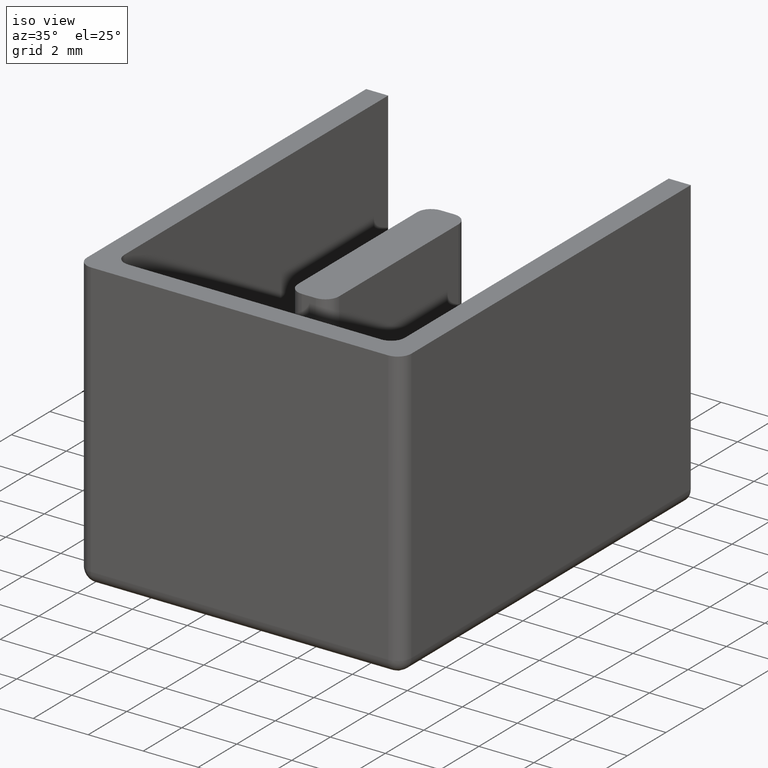
[diagram: clean part render]
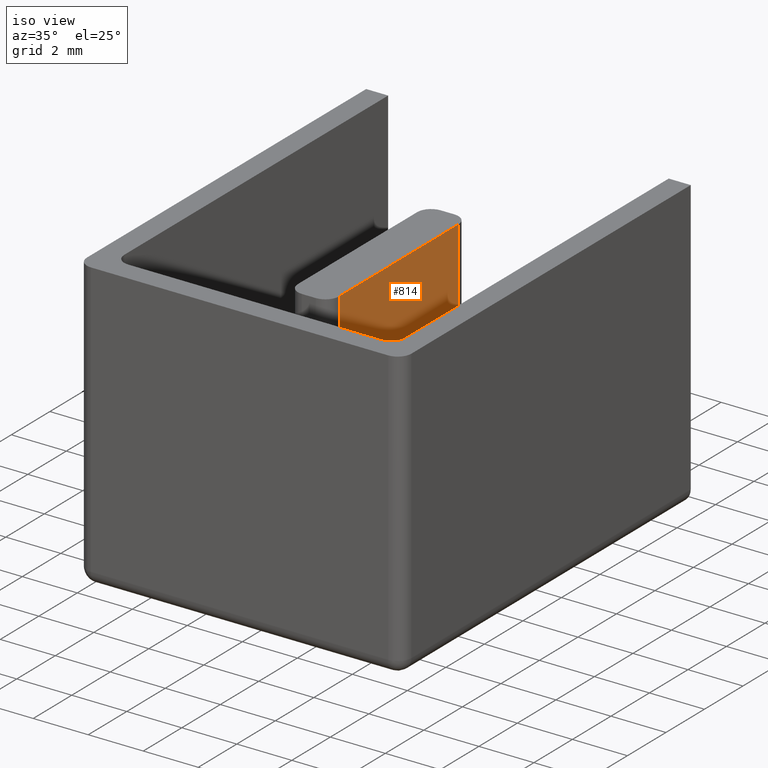
[diagram: same view with one face highlighted and labeled with its STEP entity id]
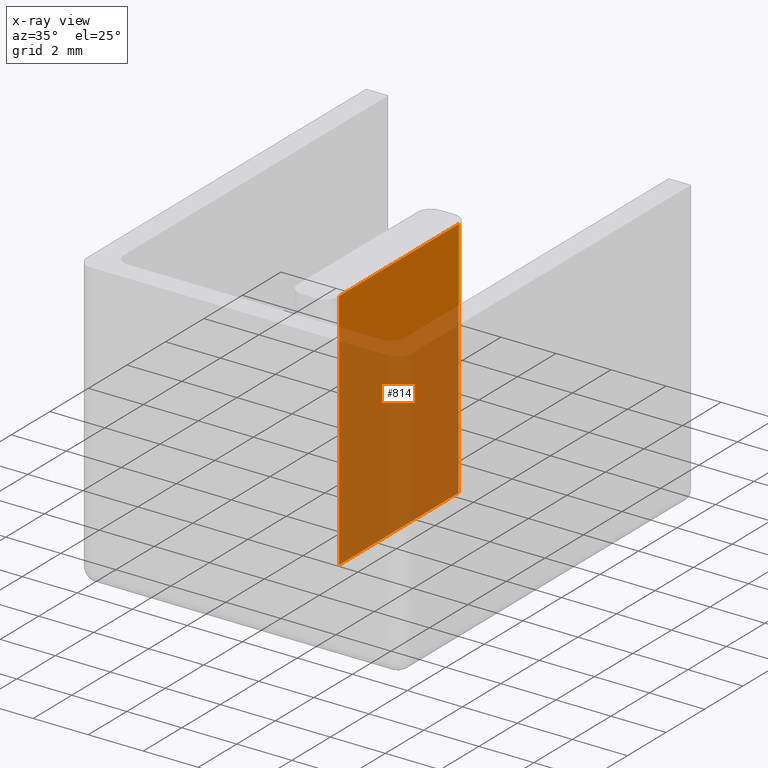
[diagram: x-ray of the same camera — body ghosted, the highlighted face saturated]
A machine part, iso view. The second image highlights one B-rep face of the part: STEP entity #814.
The next image is the same camera in x-ray: the body ghosted, the highlighted face saturated — about 74% of this face is hidden behind the body in this view.
In plain terms, the highlighted planar face has unit normal (-1, 0, 0).
Its self-contained STEP definition (entity closure, byte-faithful):
#4 = VECTOR ( 'NONE', #435, 1000.000000000000000 ) ;
#20 = AXIS2_PLACEMENT_3D ( 'NONE', #478, #486, #488 ) ;
#32 = VECTOR ( 'NONE', #596, 1000.000000000000000 ) ;
#43 = VECTOR ( 'NONE', #665, 1000.000000000000000 ) ;
#70 = VECTOR ( 'NONE', #605, 1000.000000000000000 ) ;
#205 = ORIENTED_EDGE ( 'NONE', *, *, #845, .F. ) ;
#223 = ORIENTED_EDGE ( 'NONE', *, *, #860, .F. ) ;
#290 = EDGE_LOOP ( 'NONE', ( #294, #223, #205, #315 ) ) ;
#294 = ORIENTED_EDGE ( 'NONE', *, *, #805, .T. ) ;
#315 = ORIENTED_EDGE ( 'NONE', *, *, #851, .T. ) ;
#322 = VERTEX_POINT ( 'NONE', #355 ) ;
#332 = CARTESIAN_POINT ( 'NONE',  ( 6.650000000000003000, 10.30000000000031000, 0.8000000000000003800 ) ) ;
#333 = VERTEX_POINT ( 'NONE', #356 ) ;
#337 = CARTESIAN_POINT ( 'NONE',  ( 6.650000000000003000, 10.30000000000031000, 9.629999999999999000 ) ) ;
#355 = CARTESIAN_POINT ( 'NONE',  ( 6.649999999999933700, 4.099999999999992500, 0.8000000000000000400 ) ) ;
#356 = CARTESIAN_POINT ( 'NONE',  ( 6.649999999999933700, 4.099999999999992500, 9.629999999999999000 ) ) ;
#361 = VERTEX_POINT ( 'NONE', #332 ) ;
#365 = VERTEX_POINT ( 'NONE', #337 ) ;
#401 = CARTESIAN_POINT ( 'NONE',  ( 6.650000000000044800, 10.30000000000031000, 0.8000000000000000400 ) ) ;
#429 = LINE ( 'NONE', #401, #4 ) ;
#435 = DIRECTION ( 'NONE',  ( 1.790682297782419300E-014, 1.000000000000000000, -0.0000000000000000000 ) ) ;
#477 = FACE_OUTER_BOUND ( 'NONE', #290, .T. ) ;
#478 = CARTESIAN_POINT ( 'NONE',  ( 6.650000000000044800, 10.30000000000031000, 9.629999999999999000 ) ) ;
#485 = PLANE ( 'NONE',  #20 ) ;
#486 = DIRECTION ( 'NONE',  ( -1.000000000000000000, 1.790682297782419300E-014, 0.0000000000000000000 ) ) ;
#488 = DIRECTION ( 'NONE',  ( -1.790682297782419300E-014, -1.000000000000000000, 0.0000000000000000000 ) ) ;
#587 = CARTESIAN_POINT ( 'NONE',  ( 6.649999999999933700, 4.099999999999992500, 9.629999999999999000 ) ) ;
#595 = LINE ( 'NONE', #587, #32 ) ;
#596 = DIRECTION ( 'NONE',  ( -0.0000000000000000000, -0.0000000000000000000, -1.000000000000000000 ) ) ;
#605 = DIRECTION ( 'NONE',  ( 1.790682297782419300E-014, 1.000000000000000000, -0.0000000000000000000 ) ) ;
#610 = CARTESIAN_POINT ( 'NONE',  ( 6.650000000000044800, 10.30000000000031000, 9.629999999999999000 ) ) ;
#622 = LINE ( 'NONE', #610, #70 ) ;
#638 = CARTESIAN_POINT ( 'NONE',  ( 6.650000000000003000, 10.30000000000031000, 9.629999999999999000 ) ) ;
#639 = LINE ( 'NONE', #638, #43 ) ;
#665 = DIRECTION ( 'NONE',  ( -0.0000000000000000000, -0.0000000000000000000, -1.000000000000000000 ) ) ;
#805 = EDGE_CURVE ( 'NONE', #322, #361, #429, .T. ) ;
#814 = ADVANCED_FACE ( 'NONE', ( #477 ), #485, .F. ) ;
#845 = EDGE_CURVE ( 'NONE', #333, #365, #622, .T. ) ;
#851 = EDGE_CURVE ( 'NONE', #333, #322, #595, .T. ) ;
#860 = EDGE_CURVE ( 'NONE', #365, #361, #639, .T. ) ;